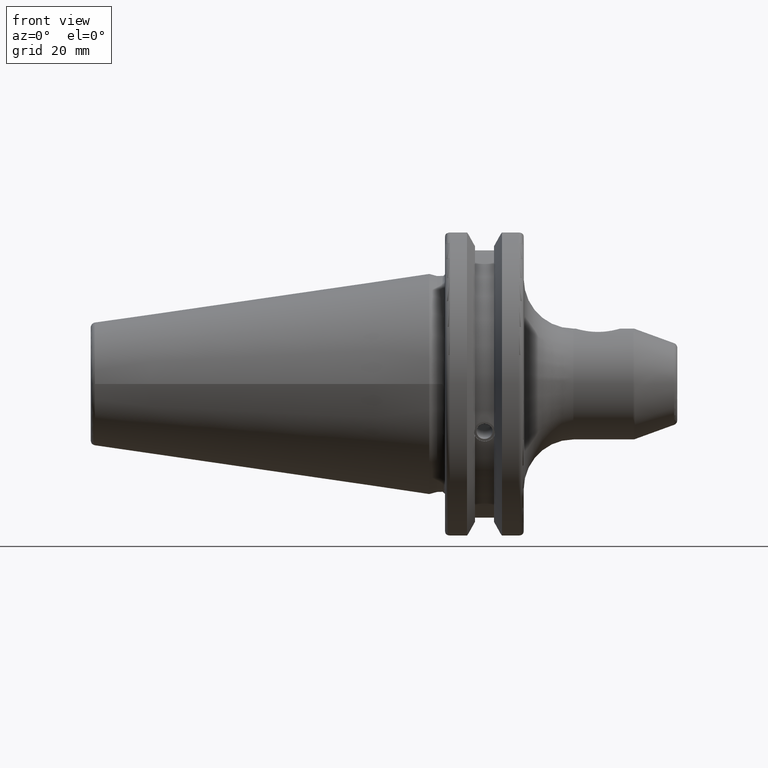
[diagram: clean part render]
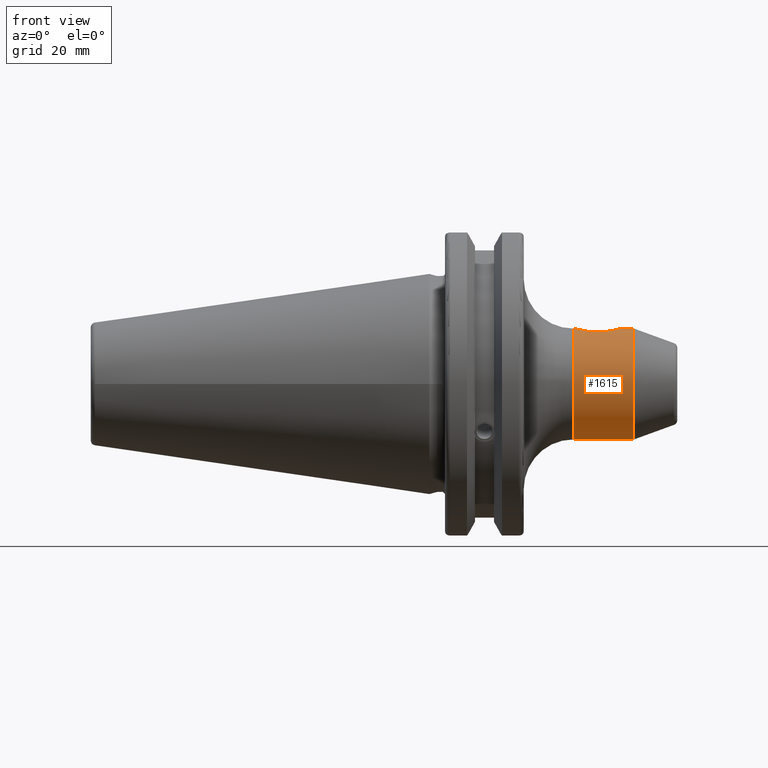
[diagram: same view with one face highlighted and labeled with its STEP entity id]
A machine part, front view. The second image highlights one B-rep face of the part: STEP entity #1615.
In plain terms, the highlighted cylindrical surface (bore or boss wall) has radius 11.176 mm, axis along (-1, 0, 0).
Its self-contained STEP definition (entity closure, byte-faithful):
#50=FACE_BOUND('',#294,.T.);
#115=CIRCLE('',#1748,11.176);
#117=CIRCLE('',#1751,11.176);
#198=FACE_OUTER_BOUND('',#293,.T.);
#293=EDGE_LOOP('',(#1146,#1147,#1148,#1149));
#294=EDGE_LOOP('',(#1150,#1151));
#395=LINE('',#2736,#494);
#494=VECTOR('',#1990,11.176);
#591=B_SPLINE_CURVE_WITH_KNOTS('',3,(#2590,#2591,#2592,#2593,#2594,#2595,
#2596,#2597,#2598,#2599),.UNSPECIFIED.,.F.,.F.,(4,2,2,2,4),(0.,0.155003135474644,
0.310006270949288,0.471543379571878,0.633080488194468),.UNSPECIFIED.);
#592=B_SPLINE_CURVE_WITH_KNOTS('',3,(#2600,#2601,#2602,#2603,#2604,#2605,
#2606,#2607,#2608,#2609,#2610,#2611,#2612,#2613,#2614,#2615,#2616,#2617,
#2618,#2619,#2620,#2621,#2622,#2623,#2624,#2625),.UNSPECIFIED.,.F.,.F.,
(4,2,2,2,2,2,2,2,2,2,2,2,4),(0.633080488194468,0.794617596817059,0.956154705439649,
1.11115784091429,1.26616097638894,1.42116411186358,1.57616724733822,1.73770435596081,
1.8992414645834,2.06077857320599,2.22231568182859,2.37731881730323,2.53232195277787),
 .UNSPECIFIED.);
#663=VERTEX_POINT('',#2587);
#664=VERTEX_POINT('',#2589);
#676=VERTEX_POINT('',#2730);
#677=VERTEX_POINT('',#2734);
#836=EDGE_CURVE('',#664,#663,#591,.T.);
#837=EDGE_CURVE('',#663,#664,#592,.T.);
#856=EDGE_CURVE('',#676,#676,#115,.T.);
#858=EDGE_CURVE('',#677,#677,#117,.T.);
#859=EDGE_CURVE('',#677,#676,#395,.T.);
#1146=ORIENTED_EDGE('',*,*,#858,.F.);
#1147=ORIENTED_EDGE('',*,*,#859,.T.);
#1148=ORIENTED_EDGE('',*,*,#856,.F.);
#1149=ORIENTED_EDGE('',*,*,#859,.F.);
#1150=ORIENTED_EDGE('',*,*,#836,.T.);
#1151=ORIENTED_EDGE('',*,*,#837,.T.);
#1576=CYLINDRICAL_SURFACE('',#1750,11.176);
#1615=ADVANCED_FACE('',(#198,#50),#1576,.T.);
#1748=AXIS2_PLACEMENT_3D('',#2731,#1982,#1983);
#1750=AXIS2_PLACEMENT_3D('',#2733,#1986,#1987);
#1751=AXIS2_PLACEMENT_3D('',#2735,#1988,#1989);
#1982=DIRECTION('center_axis',(1.,0.,0.));
#1983=DIRECTION('ref_axis',(0.,1.22464679914735E-16,-1.));
#1986=DIRECTION('center_axis',(-1.,0.,0.));
#1987=DIRECTION('ref_axis',(0.,0.,1.));
#1988=DIRECTION('center_axis',(-1.,0.,0.));
#1989=DIRECTION('ref_axis',(0.,1.22464679914735E-16,-1.));
#1990=DIRECTION('',(1.,0.,0.));
#2587=CARTESIAN_POINT('',(29.5,-5.51091059616309E-16,11.176));
#2589=CARTESIAN_POINT('',(34.,-3.82504711697473,10.5010471169747));
#2590=CARTESIAN_POINT('Ctrl Pts',(34.,-3.82504711697473,10.5010471169747));
#2591=CARTESIAN_POINT('Ctrl Pts',(33.4833228817512,-3.82504711697473,10.5010471169747));
#2592=CARTESIAN_POINT('Ctrl Pts',(32.9270499866196,-3.74381643059348,10.5318240257127));
#2593=CARTESIAN_POINT('Ctrl Pts',(31.8798709510635,-3.40216226540701,10.6471016428939));
#2594=CARTESIAN_POINT('Ctrl Pts',(31.388773960172,-3.14182614582532,10.7301227380582));
#2595=CARTESIAN_POINT('Ctrl Pts',(30.56346650722,-2.50585742858593,10.8966143803133));
#2596=CARTESIAN_POINT('Ctrl Pts',(30.1756972822306,-2.07713067668065,10.9925046892384));
#2597=CARTESIAN_POINT('Ctrl Pts',(29.6434458108899,-1.09388526191102,11.1334204194935));
#2598=CARTESIAN_POINT('Ctrl Pts',(29.5,-0.538457028741968,11.176));
#2599=CARTESIAN_POINT('Ctrl Pts',(29.5,-4.16333634234434E-16,11.176));
#2600=CARTESIAN_POINT('Ctrl Pts',(29.5,-4.85722573273506E-16,11.176));
#2601=CARTESIAN_POINT('Ctrl Pts',(29.5,0.538457028741967,11.176));
#2602=CARTESIAN_POINT('Ctrl Pts',(29.6434458108899,1.09388526191102,11.1334204194935));
#2603=CARTESIAN_POINT('Ctrl Pts',(30.1756972822306,2.07713067668066,10.9925046892384));
#2604=CARTESIAN_POINT('Ctrl Pts',(30.56346650722,2.50585742858593,10.8966143803133));
#2605=CARTESIAN_POINT('Ctrl Pts',(31.388773960172,3.14182614582532,10.7301227380582));
#2606=CARTESIAN_POINT('Ctrl Pts',(31.8798709510636,3.40216226540701,10.6471016428939));
#2607=CARTESIAN_POINT('Ctrl Pts',(32.9270499866196,3.74381643059348,10.5318240257127));
#2608=CARTESIAN_POINT('Ctrl Pts',(33.4833228817512,3.82504711697473,10.5010471169747));
#2609=CARTESIAN_POINT('Ctrl Pts',(34.5166771182488,3.82504711697473,10.5010471169747));
#2610=CARTESIAN_POINT('Ctrl Pts',(35.0729500133804,3.74381643059348,10.5318240257127));
#2611=CARTESIAN_POINT('Ctrl Pts',(36.1201290489364,3.40216226540701,10.6471016428939));
#2612=CARTESIAN_POINT('Ctrl Pts',(36.611226039828,3.14182614582532,10.7301227380582));
#2613=CARTESIAN_POINT('Ctrl Pts',(37.4365334927799,2.50585742858593,10.8966143803133));
#2614=CARTESIAN_POINT('Ctrl Pts',(37.8243027177694,2.07713067668066,10.9925046892384));
#2615=CARTESIAN_POINT('Ctrl Pts',(38.3565541891101,1.09388526191102,11.1334204194935));
#2616=CARTESIAN_POINT('Ctrl Pts',(38.5,0.538457028741968,11.176));
#2617=CARTESIAN_POINT('Ctrl Pts',(38.5,-0.538457028741966,11.176));
#2618=CARTESIAN_POINT('Ctrl Pts',(38.3565541891101,-1.09388526191101,11.1334204194935));
#2619=CARTESIAN_POINT('Ctrl Pts',(37.8243027177694,-2.07713067668065,10.9925046892384));
#2620=CARTESIAN_POINT('Ctrl Pts',(37.43653349278,-2.50585742858593,10.8966143803133));
#2621=CARTESIAN_POINT('Ctrl Pts',(36.611226039828,-3.14182614582533,10.7301227380582));
#2622=CARTESIAN_POINT('Ctrl Pts',(36.1201290489364,-3.40216226540701,10.6471016428939));
#2623=CARTESIAN_POINT('Ctrl Pts',(35.0729500133804,-3.74381643059348,10.5318240257127));
#2624=CARTESIAN_POINT('Ctrl Pts',(34.5166771182488,-3.82504711697473,10.5010471169747));
#2625=CARTESIAN_POINT('Ctrl Pts',(34.,-3.82504711697473,10.5010471169747));
#2730=CARTESIAN_POINT('',(41.0976847351037,-1.36866526272708E-15,-11.176));
#2731=CARTESIAN_POINT('Origin',(41.0976847351037,0.,0.));
#2733=CARTESIAN_POINT('Origin',(30.1620058579061,0.,0.));
#2734=CARTESIAN_POINT('',(29.05,-1.36866526272708E-15,-11.176));
#2735=CARTESIAN_POINT('Origin',(29.05,0.,0.));
#2736=CARTESIAN_POINT('',(30.1620058579061,-1.36866526272708E-15,-11.176));